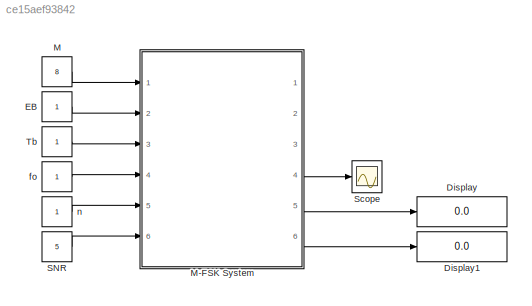
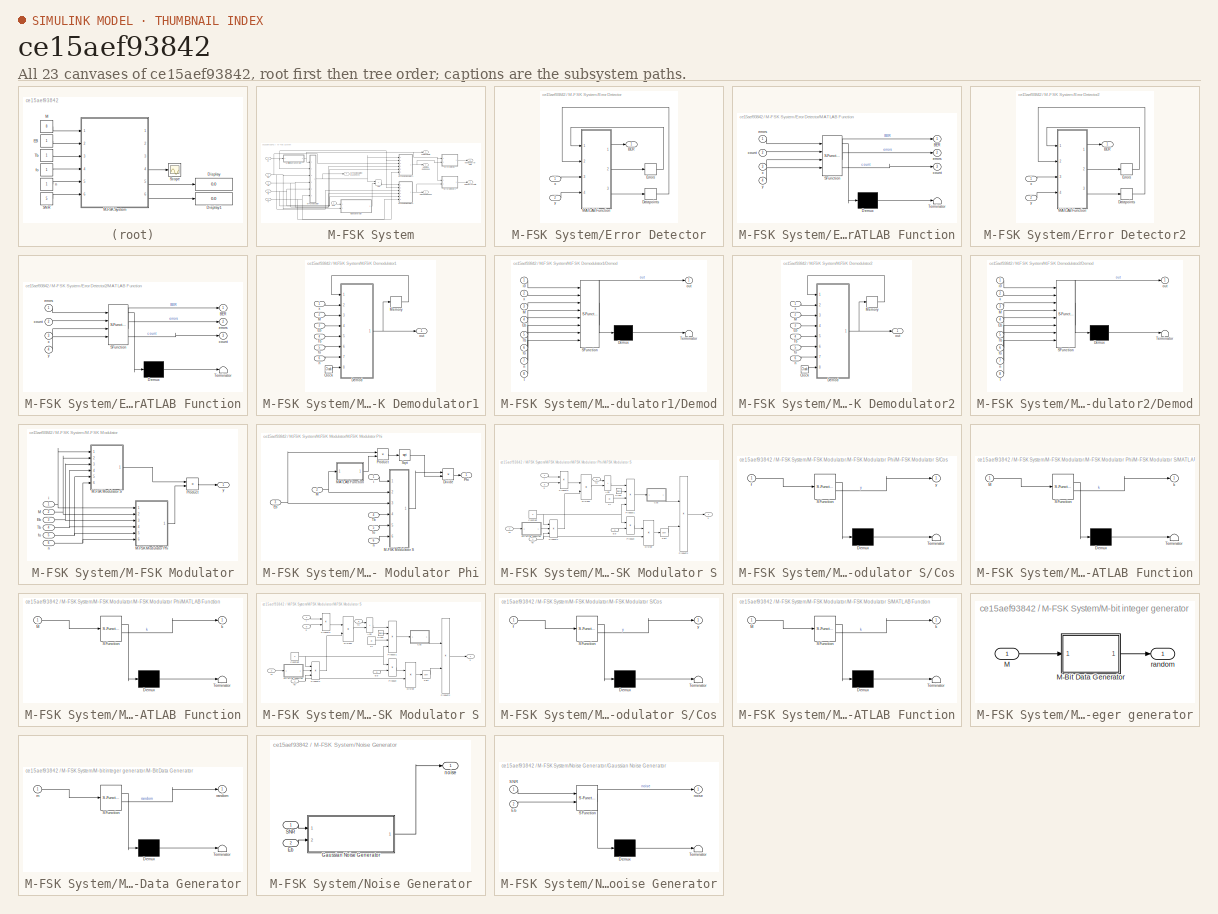
[diagram: thumbnail index - all 23 canvases of the model, root first then tree order]
MODEL slx_ce15aef93842
KIND model
CONFIG AbsTol = auto
CONFIG EnableMultiTasking = off
CONFIG FixedStep = auto
CONFIG MaxStep = auto
CONFIG MinStep = auto
CONFIG RelTol = 1e-3
CONFIG SampleTimeConstraint = Unconstrained
CONFIG SolverName = VariableStepAuto
CONFIG StartTime = 0.0
CONFIG StopTime = 20.0
WORKSPACE source: mxarray member
WORKSPACE Width = 1
WORKSPACE f = 1
BLOCK [Display] Display
  Decimation = 1
  Ports = [1]
BLOCK [Display] Display1
  Decimation = 1
  Ports = [1]
BLOCK [Constant] EB
BLOCK [Constant] M
  Value = 8
BLOCK [SubSystem] M-FSK System
  Ports = [6, 6]
  RequestExecContextInheritance = off
BLOCK [Sum] M-FSK System/Add
  IconShape = rectangular
  Ports = [2, 1]
BLOCK [Inport] M-FSK System/Eb
  Port = 2
BLOCK [SubSystem] M-FSK System/Error Detector
  Ports = [2, 1]
  RequestExecContextInheritance = off
BLOCK [Outport] M-FSK System/Error Detector/BER
BLOCK [Memory] M-FSK System/Error Detector/Datapoints
  InheritSampleTime = on
BLOCK [Memory] M-FSK System/Error Detector/Errors
  InheritSampleTime = on
BLOCK [SubSystem] M-FSK System/Error Detector/MATLAB Function
  ErrorFcn = Stateflow.Translate.translate
  PermitHierarchicalResolution = ExplicitOnly
  Ports = [4, 3]
  RequestExecContextInheritance = off
  SFBlockType = MATLAB Function
  SystemSampleTime = 0.01
  TreatAsAtomicUnit = on
BLOCK [Demux] M-FSK System/Error Detector/MATLAB Function/ Demux 
  Outputs = 1
  Ports = [1, 1]
BLOCK [S-Function] M-FSK System/Error Detector/MATLAB Function/ SFunction 
  EnableBusSupport = on
  FunctionName = sf_sfun
  PortCounts = [4 4]
  Ports = [4, 4]
  SFcnIsStateOwnerBlock = off
  SFunctionDeploymentMode = off
  Tag = Stateflow S-Function 10
BLOCK [Terminator] M-FSK System/Error Detector/MATLAB Function/ Terminator 
BLOCK [Outport] M-FSK System/Error Detector/MATLAB Function/BER
BLOCK [Outport] M-FSK System/Error Detector/MATLAB Function/count
  Port = 3
BLOCK [Inport] M-FSK System/Error Detector/MATLAB Function/count 
  Port = 2
BLOCK [Outport] M-FSK System/Error Detector/MATLAB Function/errors
  Port = 2
BLOCK [Inport] M-FSK System/Error Detector/MATLAB Function/errors 
BLOCK [Inport] M-FSK System/Error Detector/MATLAB Function/x
  Port = 3
BLOCK [Inport] M-FSK System/Error Detector/MATLAB Function/y
  Port = 4
BLOCK [Inport] M-FSK System/Error Detector/x
BLOCK [Inport] M-FSK System/Error Detector/y
  Port = 2
BLOCK [SubSystem] M-FSK System/Error Detector2
  Ports = [2, 1]
  RequestExecContextInheritance = off
BLOCK [Outport] M-FSK System/Error Detector2/BER
BLOCK [Memory] M-FSK System/Error Detector2/Datapoints
  InheritSampleTime = on
BLOCK [Memory] M-FSK System/Error Detector2/Errors
  InheritSampleTime = on
BLOCK [SubSystem] M-FSK System/Error Detector2/MATLAB Function
  ErrorFcn = Stateflow.Translate.translate
  PermitHierarchicalResolution = ExplicitOnly
  Ports = [4, 3]
  RequestExecContextInheritance = off
  SFBlockType = MATLAB Function
  SystemSampleTime = 0.01
  TreatAsAtomicUnit = on
BLOCK [Demux] M-FSK System/Error Detector2/MATLAB Function/ Demux 
  Outputs = 1
  Ports = [1, 1]
BLOCK [S-Function] M-FSK System/Error Detector2/MATLAB Function/ SFunction 
  EnableBusSupport = on
  FunctionName = sf_sfun
  PortCounts = [4 4]
  Ports = [4, 4]
  SFcnIsStateOwnerBlock = off
  SFunctionDeploymentMode = off
  Tag = Stateflow S-Function 11
BLOCK [Terminator] M-FSK System/Error Detector2/MATLAB Function/ Terminator 
BLOCK [Outport] M-FSK System/Error Detector2/MATLAB Function/BER
BLOCK [Outport] M-FSK System/Error Detector2/MATLAB Function/count
  Port = 3
BLOCK [Inport] M-FSK System/Error Detector2/MATLAB Function/count 
  Port = 2
BLOCK [Outport] M-FSK System/Error Detector2/MATLAB Function/errors
  Port = 2
BLOCK [Inport] M-FSK System/Error Detector2/MATLAB Function/errors 
BLOCK [Inport] M-FSK System/Error Detector2/MATLAB Function/x
  Port = 3
BLOCK [Inport] M-FSK System/Error Detector2/MATLAB Function/y
  Port = 4
BLOCK [Inport] M-FSK System/Error Detector2/x
BLOCK [Inport] M-FSK System/Error Detector2/y
  Port = 2
BLOCK [Inport] M-FSK System/M
BLOCK [SubSystem] M-FSK System/M-FSK Demodulator1
  Ports = [6, 1]
  RequestExecContextInheritance = off
BLOCK [Clock] M-FSK System/M-FSK Demodulator1/Clock
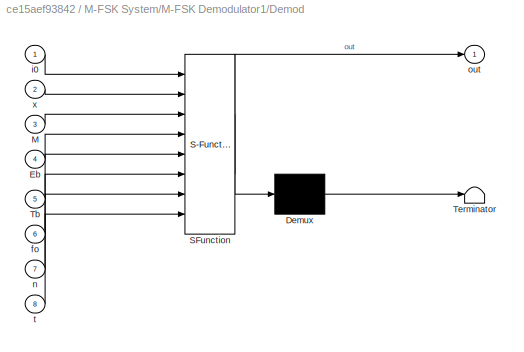
BLOCK [SubSystem] M-FSK System/M-FSK Demodulator1/Demod
  ErrorFcn = Stateflow.Translate.translate
  PermitHierarchicalResolution = ExplicitOnly
  Ports = [8, 1]
  RequestExecContextInheritance = off
  SFBlockType = MATLAB Function
  SystemSampleTime = 0.01
  TreatAsAtomicUnit = on
BLOCK [Demux] M-FSK System/M-FSK Demodulator1/Demod/ Demux 
  Outputs = 1
  Ports = [1, 1]
BLOCK [S-Function] M-FSK System/M-FSK Demodulator1/Demod/ SFunction 
  EnableBusSupport = on
  FunctionName = sf_sfun
  PortCounts = [8 2]
  Ports = [8, 2]
  SFcnIsStateOwnerBlock = off
  SFunctionDeploymentMode = off
  Tag = Stateflow S-Function 9
BLOCK [Terminator] M-FSK System/M-FSK Demodulator1/Demod/ Terminator 
BLOCK [Inport] M-FSK System/M-FSK Demodulator1/Demod/Eb
  Port = 4
BLOCK [Inport] M-FSK System/M-FSK Demodulator1/Demod/M
  Port = 3
BLOCK [Inport] M-FSK System/M-FSK Demodulator1/Demod/Tb
  Port = 5
BLOCK [Inport] M-FSK System/M-FSK Demodulator1/Demod/fo
  Port = 6
BLOCK [Inport] M-FSK System/M-FSK Demodulator1/Demod/i0
BLOCK [Inport] M-FSK System/M-FSK Demodulator1/Demod/n
  Port = 7
BLOCK [Outport] M-FSK System/M-FSK Demodulator1/Demod/out
BLOCK [Inport] M-FSK System/M-FSK Demodulator1/Demod/t
  Port = 8
BLOCK [Inport] M-FSK System/M-FSK Demodulator1/Demod/x
  Port = 2
BLOCK [Inport] M-FSK System/M-FSK Demodulator1/Eb
  Port = 3
BLOCK [Inport] M-FSK System/M-FSK Demodulator1/M
  Port = 2
BLOCK [Memory] M-FSK System/M-FSK Demodulator1/Memory
  InheritSampleTime = on
BLOCK [Inport] M-FSK System/M-FSK Demodulator1/Tb
  Port = 4
BLOCK [Inport] M-FSK System/M-FSK Demodulator1/fo
  Port = 5
BLOCK [Inport] M-FSK System/M-FSK Demodulator1/n
  Port = 6
BLOCK [Outport] M-FSK System/M-FSK Demodulator1/out
BLOCK [Inport] M-FSK System/M-FSK Demodulator1/x
BLOCK [SubSystem] M-FSK System/M-FSK Demodulator2
  Ports = [6, 1]
  RequestExecContextInheritance = off
BLOCK [Clock] M-FSK System/M-FSK Demodulator2/Clock
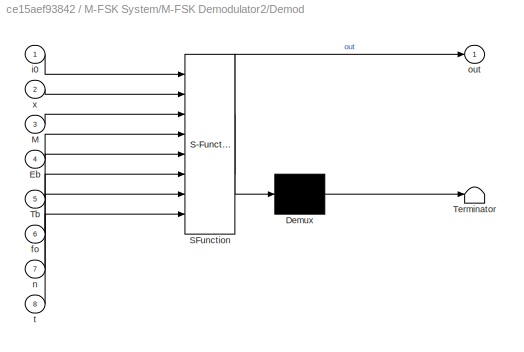
BLOCK [SubSystem] M-FSK System/M-FSK Demodulator2/Demod
  ErrorFcn = Stateflow.Translate.translate
  PermitHierarchicalResolution = ExplicitOnly
  Ports = [8, 1]
  RequestExecContextInheritance = off
  SFBlockType = MATLAB Function
  SystemSampleTime = 0.01
  TreatAsAtomicUnit = on
BLOCK [Demux] M-FSK System/M-FSK Demodulator2/Demod/ Demux 
  Outputs = 1
  Ports = [1, 1]
BLOCK [S-Function] M-FSK System/M-FSK Demodulator2/Demod/ SFunction 
  EnableBusSupport = on
  FunctionName = sf_sfun
  PortCounts = [8 2]
  Ports = [8, 2]
  SFcnIsStateOwnerBlock = off
  SFunctionDeploymentMode = off
  Tag = Stateflow S-Function 8
BLOCK [Terminator] M-FSK System/M-FSK Demodulator2/Demod/ Terminator 
BLOCK [Inport] M-FSK System/M-FSK Demodulator2/Demod/Eb
  Port = 4
BLOCK [Inport] M-FSK System/M-FSK Demodulator2/Demod/M
  Port = 3
BLOCK [Inport] M-FSK System/M-FSK Demodulator2/Demod/Tb
  Port = 5
BLOCK [Inport] M-FSK System/M-FSK Demodulator2/Demod/fo
  Port = 6
BLOCK [Inport] M-FSK System/M-FSK Demodulator2/Demod/i0
BLOCK [Inport] M-FSK System/M-FSK Demodulator2/Demod/n
  Port = 7
BLOCK [Outport] M-FSK System/M-FSK Demodulator2/Demod/out
BLOCK [Inport] M-FSK System/M-FSK Demodulator2/Demod/t
  Port = 8
BLOCK [Inport] M-FSK System/M-FSK Demodulator2/Demod/x
  Port = 2
BLOCK [Inport] M-FSK System/M-FSK Demodulator2/Eb
  Port = 3
BLOCK [Inport] M-FSK System/M-FSK Demodulator2/M
  Port = 2
BLOCK [Memory] M-FSK System/M-FSK Demodulator2/Memory
  InheritSampleTime = on
BLOCK [Inport] M-FSK System/M-FSK Demodulator2/Tb
  Port = 4
BLOCK [Inport] M-FSK System/M-FSK Demodulator2/fo
  Port = 5
BLOCK [Inport] M-FSK System/M-FSK Demodulator2/n
  Port = 6
BLOCK [Outport] M-FSK System/M-FSK Demodulator2/out
BLOCK [Inport] M-FSK System/M-FSK Demodulator2/x
BLOCK [Outport] M-FSK System/M-FSK Modulated WaveForm
  Port = 4
BLOCK [SubSystem] M-FSK System/M-FSK Modulator
  Ports = [6, 1]
  RequestExecContextInheritance = off
BLOCK [Inport] M-FSK System/M-FSK Modulator/Eb
  Port = 3
BLOCK [Inport] M-FSK System/M-FSK Modulator/M
  Port = 2
BLOCK [SubSystem] M-FSK System/M-FSK Modulator/M-FSK Modulator Phi
  Ports = [6, 1]
  RequestExecContextInheritance = off
BLOCK [Product] M-FSK System/M-FSK Modulator/M-FSK Modulator Phi/Divide
  Inputs = */
  Ports = [2, 1]
BLOCK [Inport] M-FSK System/M-FSK Modulator/M-FSK Modulator Phi/Eb
  Port = 3
BLOCK [Inport] M-FSK System/M-FSK Modulator/M-FSK Modulator Phi/M
  Port = 2
BLOCK [SubSystem] M-FSK System/M-FSK Modulator/M-FSK Modulator Phi/M-FSK Modulator S
  Ports = [6, 1]
  RequestExecContextInheritance = off
BLOCK [Sum] M-FSK System/M-FSK Modulator/M-FSK Modulator Phi/M-FSK Modulator S/Add
  IconShape = rectangular
  Ports = [2, 1]
BLOCK [Clock] M-FSK System/M-FSK Modulator/M-FSK Modulator Phi/M-FSK Modulator S/Clock
  Decimation = 1
BLOCK [Constant] M-FSK System/M-FSK Modulator/M-FSK Modulator Phi/M-FSK Modulator S/Constant
  Value = 2
BLOCK [SubSystem] M-FSK System/M-FSK Modulator/M-FSK Modulator Phi/M-FSK Modulator S/Cos
  ErrorFcn = Stateflow.Translate.translate
  PermitHierarchicalResolution = ExplicitOnly
  Ports = [1, 1]
  RequestExecContextInheritance = off
  SFBlockType = MATLAB Function
  SystemSampleTime = 0.01
  TreatAsAtomicUnit = on
BLOCK [Demux] M-FSK System/M-FSK Modulator/M-FSK Modulator Phi/M-FSK Modulator S/Cos/ Demux 
  Outputs = 1
  Ports = [1, 1]
BLOCK [S-Function] M-FSK System/M-FSK Modulator/M-FSK Modulator Phi/M-FSK Modulator S/Cos/ SFunction 
  EnableBusSupport = on
  FunctionName = sf_sfun
  PortCounts = [1 2]
  Ports = [1, 2]
  SFcnIsStateOwnerBlock = off
  SFunctionDeploymentMode = off
  Tag = Stateflow S-Function 2
BLOCK [Terminator] M-FSK System/M-FSK Modulator/M-FSK Modulator Phi/M-FSK Modulator S/Cos/ Terminator 
BLOCK [Inport] M-FSK System/M-FSK Modulator/M-FSK Modulator Phi/M-FSK Modulator S/Cos/f
BLOCK [Outport] M-FSK System/M-FSK Modulator/M-FSK Modulator Phi/M-FSK Modulator S/Cos/y
BLOCK [Product] M-FSK System/M-FSK Modulator/M-FSK Modulator Phi/M-FSK Modulator S/Divide
  Inputs = */
  Ports = [2, 1]
BLOCK [Product] M-FSK System/M-FSK Modulator/M-FSK Modulator Phi/M-FSK Modulator S/Divide1
  Inputs = */
  Ports = [2, 1]
BLOCK [Inport] M-FSK System/M-FSK Modulator/M-FSK Modulator Phi/M-FSK Modulator S/Eb
  Port = 3
BLOCK [Inport] M-FSK System/M-FSK Modulator/M-FSK Modulator Phi/M-FSK Modulator S/M
  Port = 2
BLOCK [SubSystem] M-FSK System/M-FSK Modulator/M-FSK Modulator Phi/M-FSK Modulator S/MATLAB Function
  ErrorFcn = Stateflow.Translate.translate
  PermitHierarchicalResolution = ExplicitOnly
  Ports = [1, 1]
  RequestExecContextInheritance = off
  SFBlockType = MATLAB Function
  TreatAsAtomicUnit = on
BLOCK [Demux] M-FSK System/M-FSK Modulator/M-FSK Modulator Phi/M-FSK Modulator S/MATLAB Function/ Demux 
  Outputs = 1
  Ports = [1, 1]
BLOCK [S-Function] M-FSK System/M-FSK Modulator/M-FSK Modulator Phi/M-FSK Modulator S/MATLAB Function/ SFunction 
  EnableBusSupport = on
  FunctionName = sf_sfun
  PortCounts = [1 2]
  Ports = [1, 2]
  SFcnIsStateOwnerBlock = off
  SFunctionDeploymentMode = off
  Tag = Stateflow S-Function 6
BLOCK [Terminator] M-FSK System/M-FSK Modulator/M-FSK Modulator Phi/M-FSK Modulator S/MATLAB Function/ Terminator 
BLOCK [Inport] M-FSK System/M-FSK Modulator/M-FSK Modulator Phi/M-FSK Modulator S/MATLAB Function/M
BLOCK [Outport] M-FSK System/M-FSK Modulator/M-FSK Modulator Phi/M-FSK Modulator S/MATLAB Function/k
BLOCK [Constant] M-FSK System/M-FSK Modulator/M-FSK Modulator Phi/M-FSK Modulator S/Pi
  OutDataTypeStr = Inherit: Inherit via back propagation
  Value = pi
BLOCK [Product] M-FSK System/M-FSK Modulator/M-FSK Modulator Phi/M-FSK Modulator S/Product
  Ports = [2, 1]
BLOCK [Product] M-FSK System/M-FSK Modulator/M-FSK Modulator Phi/M-FSK Modulator S/Product1
  Inputs = 4
  Ports = [4, 1]
BLOCK [Product] M-FSK System/M-FSK Modulator/M-FSK Modulator Phi/M-FSK Modulator S/Product2
  Ports = [2, 1]
BLOCK [Product] M-FSK System/M-FSK Modulator/M-FSK Modulator Phi/M-FSK Modulator S/Product3
  Ports = [2, 1]
BLOCK [Product] M-FSK System/M-FSK Modulator/M-FSK Modulator Phi/M-FSK Modulator S/Product4
  Inputs = 3
  Ports = [3, 1]
BLOCK [Sqrt] M-FSK System/M-FSK Modulator/M-FSK Modulator Phi/M-FSK Modulator S/Sqrt
BLOCK [Inport] M-FSK System/M-FSK Modulator/M-FSK Modulator Phi/M-FSK Modulator S/Tb
  Port = 4
BLOCK [Inport] M-FSK System/M-FSK Modulator/M-FSK Modulator Phi/M-FSK Modulator S/fo
  Port = 5
BLOCK [Inport] M-FSK System/M-FSK Modulator/M-FSK Modulator Phi/M-FSK Modulator S/i
BLOCK [Inport] M-FSK System/M-FSK Modulator/M-FSK Modulator Phi/M-FSK Modulator S/n
  Port = 6
BLOCK [Outport] M-FSK System/M-FSK Modulator/M-FSK Modulator Phi/M-FSK Modulator S/s
BLOCK [SubSystem] M-FSK System/M-FSK Modulator/M-FSK Modulator Phi/MATLAB Function
  ErrorFcn = Stateflow.Translate.translate
  PermitHierarchicalResolution = ExplicitOnly
  Ports = [1, 1]
  RequestExecContextInheritance = off
  SFBlockType = MATLAB Function
  TreatAsAtomicUnit = on
BLOCK [Demux] M-FSK System/M-FSK Modulator/M-FSK Modulator Phi/MATLAB Function/ Demux 
  Outputs = 1
  Ports = [1, 1]
BLOCK [S-Function] M-FSK System/M-FSK Modulator/M-FSK Modulator Phi/MATLAB Function/ SFunction 
  EnableBusSupport = on
  FunctionName = sf_sfun
  PortCounts = [1 2]
  Ports = [1, 2]
  SFcnIsStateOwnerBlock = off
  SFunctionDeploymentMode = off
  Tag = Stateflow S-Function 7
BLOCK [Terminator] M-FSK System/M-FSK Modulator/M-FSK Modulator Phi/MATLAB Function/ Terminator 
BLOCK [Inport] M-FSK System/M-FSK Modulator/M-FSK Modulator Phi/MATLAB Function/M
BLOCK [Outport] M-FSK System/M-FSK Modulator/M-FSK Modulator Phi/MATLAB Function/k
BLOCK [Outport] M-FSK System/M-FSK Modulator/M-FSK Modulator Phi/Phi
BLOCK [Product] M-FSK System/M-FSK Modulator/M-FSK Modulator Phi/Product
  Ports = [2, 1]
BLOCK [Sqrt] M-FSK System/M-FSK Modulator/M-FSK Modulator Phi/Sqrt
BLOCK [Inport] M-FSK System/M-FSK Modulator/M-FSK Modulator Phi/Tb
  Port = 4
BLOCK [Inport] M-FSK System/M-FSK Modulator/M-FSK Modulator Phi/fo
  Port = 5
BLOCK [Inport] M-FSK System/M-FSK Modulator/M-FSK Modulator Phi/i
BLOCK [Inport] M-FSK System/M-FSK Modulator/M-FSK Modulator Phi/n
  Port = 6
BLOCK [SubSystem] M-FSK System/M-FSK Modulator/M-FSK Modulator S
  Ports = [6, 1]
  RequestExecContextInheritance = off
BLOCK [Sum] M-FSK System/M-FSK Modulator/M-FSK Modulator S/Add
  IconShape = rectangular
  Ports = [2, 1]
BLOCK [Clock] M-FSK System/M-FSK Modulator/M-FSK Modulator S/Clock
  Decimation = 1
BLOCK [Constant] M-FSK System/M-FSK Modulator/M-FSK Modulator S/Constant
  Value = 2
BLOCK [SubSystem] M-FSK System/M-FSK Modulator/M-FSK Modulator S/Cos
  ErrorFcn = Stateflow.Translate.translate
  PermitHierarchicalResolution = ExplicitOnly
  Ports = [1, 1]
  RequestExecContextInheritance = off
  SFBlockType = MATLAB Function
  SystemSampleTime = 0.01
  TreatAsAtomicUnit = on
BLOCK [Demux] M-FSK System/M-FSK Modulator/M-FSK Modulator S/Cos/ Demux 
  Outputs = 1
  Ports = [1, 1]
BLOCK [S-Function] M-FSK System/M-FSK Modulator/M-FSK Modulator S/Cos/ SFunction 
  EnableBusSupport = on
  FunctionName = sf_sfun
  PortCounts = [1 2]
  Ports = [1, 2]
  SFcnIsStateOwnerBlock = off
  SFunctionDeploymentMode = off
  Tag = Stateflow S-Function 1
BLOCK [Terminator] M-FSK System/M-FSK Modulator/M-FSK Modulator S/Cos/ Terminator 
BLOCK [Inport] M-FSK System/M-FSK Modulator/M-FSK Modulator S/Cos/f
BLOCK [Outport] M-FSK System/M-FSK Modulator/M-FSK Modulator S/Cos/y
BLOCK [Product] M-FSK System/M-FSK Modulator/M-FSK Modulator S/Divide
  Inputs = */
  Ports = [2, 1]
BLOCK [Product] M-FSK System/M-FSK Modulator/M-FSK Modulator S/Divide1
  Inputs = */
  Ports = [2, 1]
BLOCK [Inport] M-FSK System/M-FSK Modulator/M-FSK Modulator S/Eb
  Port = 3
BLOCK [Inport] M-FSK System/M-FSK Modulator/M-FSK Modulator S/M
  Port = 2
BLOCK [SubSystem] M-FSK System/M-FSK Modulator/M-FSK Modulator S/MATLAB Function
  ErrorFcn = Stateflow.Translate.translate
  PermitHierarchicalResolution = ExplicitOnly
  Ports = [1, 1]
  RequestExecContextInheritance = off
  SFBlockType = MATLAB Function
  TreatAsAtomicUnit = on
BLOCK [Demux] M-FSK System/M-FSK Modulator/M-FSK Modulator S/MATLAB Function/ Demux 
  Outputs = 1
  Ports = [1, 1]
BLOCK [S-Function] M-FSK System/M-FSK Modulator/M-FSK Modulator S/MATLAB Function/ SFunction 
  EnableBusSupport = on
  FunctionName = sf_sfun
  PortCounts = [1 2]
  Ports = [1, 2]
  SFcnIsStateOwnerBlock = off
  SFunctionDeploymentMode = off
  Tag = Stateflow S-Function 5
BLOCK [Terminator] M-FSK System/M-FSK Modulator/M-FSK Modulator S/MATLAB Function/ Terminator 
BLOCK [Inport] M-FSK System/M-FSK Modulator/M-FSK Modulator S/MATLAB Function/M
BLOCK [Outport] M-FSK System/M-FSK Modulator/M-FSK Modulator S/MATLAB Function/k
BLOCK [Constant] M-FSK System/M-FSK Modulator/M-FSK Modulator S/Pi
  OutDataTypeStr = Inherit: Inherit via back propagation
  Value = pi
BLOCK [Product] M-FSK System/M-FSK Modulator/M-FSK Modulator S/Product
  Ports = [2, 1]
BLOCK [Product] M-FSK System/M-FSK Modulator/M-FSK Modulator S/Product1
  Inputs = 4
  Ports = [4, 1]
BLOCK [Product] M-FSK System/M-FSK Modulator/M-FSK Modulator S/Product2
  Ports = [2, 1]
BLOCK [Product] M-FSK System/M-FSK Modulator/M-FSK Modulator S/Product3
  Ports = [2, 1]
BLOCK [Product] M-FSK System/M-FSK Modulator/M-FSK Modulator S/Product4
  Inputs = 3
  Ports = [3, 1]
BLOCK [Sqrt] M-FSK System/M-FSK Modulator/M-FSK Modulator S/Sqrt
BLOCK [Inport] M-FSK System/M-FSK Modulator/M-FSK Modulator S/Tb
  Port = 4
BLOCK [Inport] M-FSK System/M-FSK Modulator/M-FSK Modulator S/fo
  Port = 5
BLOCK [Inport] M-FSK System/M-FSK Modulator/M-FSK Modulator S/i
BLOCK [Inport] M-FSK System/M-FSK Modulator/M-FSK Modulator S/n
  Port = 6
BLOCK [Outport] M-FSK System/M-FSK Modulator/M-FSK Modulator S/s
BLOCK [Product] M-FSK System/M-FSK Modulator/Product
  Ports = [2, 1]
BLOCK [Inport] M-FSK System/M-FSK Modulator/Tb
  Port = 4
BLOCK [Inport] M-FSK System/M-FSK Modulator/fo
  Port = 5
BLOCK [Inport] M-FSK System/M-FSK Modulator/i
BLOCK [Inport] M-FSK System/M-FSK Modulator/n
  Port = 6
BLOCK [Outport] M-FSK System/M-FSK Modulator/y
BLOCK [SubSystem] M-FSK System/M-bit integer generator
  Ports = [1, 1]
  RequestExecContextInheritance = off
BLOCK [Inport] M-FSK System/M-bit integer generator/M
BLOCK [SubSystem] M-FSK System/M-bit integer generator/M-Bit Data Generator
  ErrorFcn = Stateflow.Translate.translate
  PermitHierarchicalResolution = ExplicitOnly
  Ports = [1, 1]
  RequestExecContextInheritance = off
  SFBlockType = MATLAB Function
  SystemSampleTime = 2
  TreatAsAtomicUnit = on
BLOCK [Demux] M-FSK System/M-bit integer generator/M-Bit Data Generator/ Demux 
  Outputs = 1
  Ports = [1, 1]
BLOCK [S-Function] M-FSK System/M-bit integer generator/M-Bit Data Generator/ SFunction 
  EnableBusSupport = on
  FunctionName = sf_sfun
  PortCounts = [1 2]
  Ports = [1, 2]
  SFcnIsStateOwnerBlock = off
  SFunctionDeploymentMode = off
  Tag = Stateflow S-Function 4
BLOCK [Terminator] M-FSK System/M-bit integer generator/M-Bit Data Generator/ Terminator 
BLOCK [Inport] M-FSK System/M-bit integer generator/M-Bit Data Generator/m
BLOCK [Outport] M-FSK System/M-bit integer generator/M-Bit Data Generator/random
BLOCK [Outport] M-FSK System/M-bit integer generator/random
BLOCK [Outport] M-FSK System/No Noise Demodded
BLOCK [Outport] M-FSK System/No Noise Error Rate
  Port = 5
BLOCK [Outport] M-FSK System/Noise Demodded
  Port = 2
BLOCK [Outport] M-FSK System/Noise Error Rate
  Port = 6
BLOCK [SubSystem] M-FSK System/Noise Generator
  Ports = [2, 1]
  RequestExecContextInheritance = off
BLOCK [Inport] M-FSK System/Noise Generator/Eb
  Port = 2
BLOCK [SubSystem] M-FSK System/Noise Generator/Gaussian Noise Generator
  ErrorFcn = Stateflow.Translate.translate
  PermitHierarchicalResolution = ExplicitOnly
  Ports = [2, 1]
  RequestExecContextInheritance = off
  SFBlockType = MATLAB Function
  SystemSampleTime = 0.01
  TreatAsAtomicUnit = on
BLOCK [Demux] M-FSK System/Noise Generator/Gaussian Noise Generator/ Demux 
  Outputs = 1
  Ports = [1, 1]
BLOCK [S-Function] M-FSK System/Noise Generator/Gaussian Noise Generator/ SFunction 
  EnableBusSupport = on
  FunctionName = sf_sfun
  PortCounts = [2 2]
  Ports = [2, 2]
  SFcnIsStateOwnerBlock = off
  SFunctionDeploymentMode = off
  Tag = Stateflow S-Function 3
BLOCK [Terminator] M-FSK System/Noise Generator/Gaussian Noise Generator/ Terminator 
BLOCK [Inport] M-FSK System/Noise Generator/Gaussian Noise Generator/Eb
  Port = 2
BLOCK [Inport] M-FSK System/Noise Generator/Gaussian Noise Generator/SNR
BLOCK [Outport] M-FSK System/Noise Generator/Gaussian Noise Generator/noise
BLOCK [Inport] M-FSK System/Noise Generator/SNR
BLOCK [Outport] M-FSK System/Noise Generator/noise
BLOCK [Outport] M-FSK System/Origional Data
  Port = 3
BLOCK [Inport] M-FSK System/SNR
  Port = 6
BLOCK [Inport] M-FSK System/Tb
  Port = 3
BLOCK [Inport] M-FSK System/fo
  Port = 4
BLOCK [Inport] M-FSK System/n
  Port = 5
BLOCK [Constant] SNR
  Value = 5
BLOCK [Scope] Scope
  Floating = off
  NumInputPorts = 1
  Ports = [1]
  ScopeSpecificationString = Simulink.scopes.TimeScopeBlockCfg('CurrentConfiguration', extmgr.ConfigurationSet(extmgr.Configuration('Core','General UI',true),extmgr.Configuration('Core','Source UI',true),extmgr.Configuration('Sources','WiredSimulink',true),extmgr.Configuration('Visuals','Time Domain',true,'SerializedDisplays',{struct('MinYLimReal','-0.875','MaxYLimReal','7.875','YLabelReal','','MinYLimMag','0.00000','MaxYLimM...<+1353ch>
BLOCK [Constant] Tb
BLOCK [Constant] fo
BLOCK [Constant] n
LINE EB:1 -> M-FSK System:2
LINE M-FSK System/Add:1 -> M-FSK System/M-FSK Demodulator2:1
NET M-FSK System/Eb:1 -> M-FSK System/M-FSK Demodulator1:3, M-FSK System/M-FSK Demodulator2:3, M-FSK System/M-FSK Modulator:3, M-FSK System/Noise Generator:2
LINE M-FSK System/Error Detector/Datapoints:1 -> M-FSK System/Error Detector/MATLAB Function:2
LINE M-FSK System/Error Detector/Errors:1 -> M-FSK System/Error Detector/MATLAB Function:1
LINE M-FSK System/Error Detector/MATLAB Function:1 -> M-FSK System/Error Detector/BER:1
LINE M-FSK System/Error Detector/MATLAB Function:2 -> M-FSK System/Error Detector/Errors:1
LINE M-FSK System/Error Detector/MATLAB Function:3 -> M-FSK System/Error Detector/Datapoints:1
LINE M-FSK System/Error Detector/x:1 -> M-FSK System/Error Detector/MATLAB Function:3
LINE M-FSK System/Error Detector/y:1 -> M-FSK System/Error Detector/MATLAB Function:4
LINE M-FSK System/Error Detector2/Datapoints:1 -> M-FSK System/Error Detector2/MATLAB Function:2
LINE M-FSK System/Error Detector2/Errors:1 -> M-FSK System/Error Detector2/MATLAB Function:1
LINE M-FSK System/Error Detector2/MATLAB Function:1 -> M-FSK System/Error Detector2/BER:1
LINE M-FSK System/Error Detector2/MATLAB Function:2 -> M-FSK System/Error Detector2/Errors:1
LINE M-FSK System/Error Detector2/MATLAB Function:3 -> M-FSK System/Error Detector2/Datapoints:1
LINE M-FSK System/Error Detector2/x:1 -> M-FSK System/Error Detector2/MATLAB Function:3
LINE M-FSK System/Error Detector2/y:1 -> M-FSK System/Error Detector2/MATLAB Function:4
LINE M-FSK System/Error Detector2:1 -> M-FSK System/Noise Error Rate:1
LINE M-FSK System/Error Detector:1 -> M-FSK System/No Noise Error Rate:1
LINE M-FSK System/M-FSK Demodulator1/Clock:1 -> M-FSK System/M-FSK Demodulator1/Demod:8
NET M-FSK System/M-FSK Demodulator1/Demod:1 -> M-FSK System/M-FSK Demodulator1/Memory:1, M-FSK System/M-FSK Demodulator1/out:1
LINE M-FSK System/M-FSK Demodulator1/Eb:1 -> M-FSK System/M-FSK Demodulator1/Demod:4
LINE M-FSK System/M-FSK Demodulator1/M:1 -> M-FSK System/M-FSK Demodulator1/Demod:3
LINE M-FSK System/M-FSK Demodulator1/Memory:1 -> M-FSK System/M-FSK Demodulator1/Demod:1
LINE M-FSK System/M-FSK Demodulator1/Tb:1 -> M-FSK System/M-FSK Demodulator1/Demod:5
LINE M-FSK System/M-FSK Demodulator1/fo:1 -> M-FSK System/M-FSK Demodulator1/Demod:6
LINE M-FSK System/M-FSK Demodulator1/n:1 -> M-FSK System/M-FSK Demodulator1/Demod:7
LINE M-FSK System/M-FSK Demodulator1/x:1 -> M-FSK System/M-FSK Demodulator1/Demod:2
NET M-FSK System/M-FSK Demodulator1:1 -> M-FSK System/Error Detector:2, M-FSK System/No Noise Demodded:1
LINE M-FSK System/M-FSK Demodulator2/Clock:1 -> M-FSK System/M-FSK Demodulator2/Demod:8
NET M-FSK System/M-FSK Demodulator2/Demod:1 -> M-FSK System/M-FSK Demodulator2/Memory:1, M-FSK System/M-FSK Demodulator2/out:1
LINE M-FSK System/M-FSK Demodulator2/Eb:1 -> M-FSK System/M-FSK Demodulator2/Demod:4
LINE M-FSK System/M-FSK Demodulator2/M:1 -> M-FSK System/M-FSK Demodulator2/Demod:3
LINE M-FSK System/M-FSK Demodulator2/Memory:1 -> M-FSK System/M-FSK Demodulator2/Demod:1
LINE M-FSK System/M-FSK Demodulator2/Tb:1 -> M-FSK System/M-FSK Demodulator2/Demod:5
LINE M-FSK System/M-FSK Demodulator2/fo:1 -> M-FSK System/M-FSK Demodulator2/Demod:6
LINE M-FSK System/M-FSK Demodulator2/n:1 -> M-FSK System/M-FSK Demodulator2/Demod:7
LINE M-FSK System/M-FSK Demodulator2/x:1 -> M-FSK System/M-FSK Demodulator2/Demod:2
NET M-FSK System/M-FSK Demodulator2:1 -> M-FSK System/Error Detector2:2, M-FSK System/Noise Demodded:1
NET M-FSK System/M-FSK Modulator/Eb:1 -> M-FSK System/M-FSK Modulator/M-FSK Modulator Phi:3, M-FSK System/M-FSK Modulator/M-FSK Modulator S:3
LINE M-FSK System/M-FSK Modulator/M-FSK Modulator Phi/Divide:1 -> M-FSK System/M-FSK Modulator/M-FSK Modulator Phi/Phi:1
NET M-FSK System/M-FSK Modulator/M-FSK Modulator Phi/Eb:1 -> M-FSK System/M-FSK Modulator/M-FSK Modulator Phi/M-FSK Modulator S:3, M-FSK System/M-FSK Modulator/M-FSK Modulator Phi/Product:1
LINE M-FSK System/M-FSK Modulator/M-FSK Modulator Phi/M-FSK Modulator S/Add:1 -> M-FSK System/M-FSK Modulator/M-FSK Modulator Phi/M-FSK Modulator S/Product1:1
LINE M-FSK System/M-FSK Modulator/M-FSK Modulator Phi/M-FSK Modulator S/Clock:1 -> M-FSK System/M-FSK Modulator/M-FSK Modulator Phi/M-FSK Modulator S/Product1:2
NET M-FSK System/M-FSK Modulator/M-FSK Modulator Phi/M-FSK Modulator S/Constant:1 -> M-FSK System/M-FSK Modulator/M-FSK Modulator Phi/M-FSK Modulator S/Product1:4, M-FSK System/M-FSK Modulator/M-FSK Modulator Phi/M-FSK Modulator S/Product4:1, M-FSK System/M-FSK Modulator/M-FSK Modulator Phi/M-FSK Modulator S/Product:1
LINE M-FSK System/M-FSK Modulator/M-FSK Modulator Phi/M-FSK Modulator S/Cos:1 -> M-FSK System/M-FSK Modulator/M-FSK Modulator Phi/M-FSK Modulator S/Product2:1
LINE M-FSK System/M-FSK Modulator/M-FSK Modulator Phi/M-FSK Modulator S/Divide1:1 -> M-FSK System/M-FSK Modulator/M-FSK Modulator Phi/M-FSK Modulator S/Add:2
LINE M-FSK System/M-FSK Modulator/M-FSK Modulator Phi/M-FSK Modulator S/Divide:1 -> M-FSK System/M-FSK Modulator/M-FSK Modulator Phi/M-FSK Modulator S/Sqrt:1
LINE M-FSK System/M-FSK Modulator/M-FSK Modulator Phi/M-FSK Modulator S/Eb:1 -> M-FSK System/M-FSK Modulator/M-FSK Modulator Phi/M-FSK Modulator S/Product:2
LINE M-FSK System/M-FSK Modulator/M-FSK Modulator Phi/M-FSK Modulator S/M:1 -> M-FSK System/M-FSK Modulator/M-FSK Modulator Phi/M-FSK Modulator S/MATLAB Function:1
LINE M-FSK System/M-FSK Modulator/M-FSK Modulator Phi/M-FSK Modulator S/MATLAB Function:1 -> M-FSK System/M-FSK Modulator/M-FSK Modulator Phi/M-FSK Modulator S/Product4:2
LINE M-FSK System/M-FSK Modulator/M-FSK Modulator Phi/M-FSK Modulator S/Pi:1 -> M-FSK System/M-FSK Modulator/M-FSK Modulator Phi/M-FSK Modulator S/Product1:3
LINE M-FSK System/M-FSK Modulator/M-FSK Modulator Phi/M-FSK Modulator S/Product1:1 -> M-FSK System/M-FSK Modulator/M-FSK Modulator Phi/M-FSK Modulator S/Cos:1
LINE M-FSK System/M-FSK Modulator/M-FSK Modulator Phi/M-FSK Modulator S/Product2:1 -> M-FSK System/M-FSK Modulator/M-FSK Modulator Phi/M-FSK Modulator S/s:1
LINE M-FSK System/M-FSK Modulator/M-FSK Modulator Phi/M-FSK Modulator S/Product3:1 -> M-FSK System/M-FSK Modulator/M-FSK Modulator Phi/M-FSK Modulator S/Divide1:1
LINE M-FSK System/M-FSK Modulator/M-FSK Modulator Phi/M-FSK Modulator S/Product4:1 -> M-FSK System/M-FSK Modulator/M-FSK Modulator Phi/M-FSK Modulator S/Divide1:2
LINE M-FSK System/M-FSK Modulator/M-FSK Modulator Phi/M-FSK Modulator S/Product:1 -> M-FSK System/M-FSK Modulator/M-FSK Modulator Phi/M-FSK Modulator S/Divide:1
LINE M-FSK System/M-FSK Modulator/M-FSK Modulator Phi/M-FSK Modulator S/Sqrt:1 -> M-FSK System/M-FSK Modulator/M-FSK Modulator Phi/M-FSK Modulator S/Product2:2
NET M-FSK System/M-FSK Modulator/M-FSK Modulator Phi/M-FSK Modulator S/Tb:1 -> M-FSK System/M-FSK Modulator/M-FSK Modulator Phi/M-FSK Modulator S/Divide:2, M-FSK System/M-FSK Modulator/M-FSK Modulator Phi/M-FSK Modulator S/Product4:3
LINE M-FSK System/M-FSK Modulator/M-FSK Modulator Phi/M-FSK Modulator S/fo:1 -> M-FSK System/M-FSK Modulator/M-FSK Modulator Phi/M-FSK Modulator S/Add:1
LINE M-FSK System/M-FSK Modulator/M-FSK Modulator Phi/M-FSK Modulator S/i:1 -> M-FSK System/M-FSK Modulator/M-FSK Modulator Phi/M-FSK Modulator S/Product3:1
LINE M-FSK System/M-FSK Modulator/M-FSK Modulator Phi/M-FSK Modulator S/n:1 -> M-FSK System/M-FSK Modulator/M-FSK Modulator Phi/M-FSK Modulator S/Product3:2
LINE M-FSK System/M-FSK Modulator/M-FSK Modulator Phi/M-FSK Modulator S:1 -> M-FSK System/M-FSK Modulator/M-FSK Modulator Phi/Divide:1
NET M-FSK System/M-FSK Modulator/M-FSK Modulator Phi/M:1 -> M-FSK System/M-FSK Modulator/M-FSK Modulator Phi/M-FSK Modulator S:2, M-FSK System/M-FSK Modulator/M-FSK Modulator Phi/MATLAB Function:1
LINE M-FSK System/M-FSK Modulator/M-FSK Modulator Phi/MATLAB Function:1 -> M-FSK System/M-FSK Modulator/M-FSK Modulator Phi/Product:2
LINE M-FSK System/M-FSK Modulator/M-FSK Modulator Phi/Product:1 -> M-FSK System/M-FSK Modulator/M-FSK Modulator Phi/Sqrt:1
LINE M-FSK System/M-FSK Modulator/M-FSK Modulator Phi/Sqrt:1 -> M-FSK System/M-FSK Modulator/M-FSK Modulator Phi/Divide:2
LINE M-FSK System/M-FSK Modulator/M-FSK Modulator Phi/Tb:1 -> M-FSK System/M-FSK Modulator/M-FSK Modulator Phi/M-FSK Modulator S:4
LINE M-FSK System/M-FSK Modulator/M-FSK Modulator Phi/fo:1 -> M-FSK System/M-FSK Modulator/M-FSK Modulator Phi/M-FSK Modulator S:5
LINE M-FSK System/M-FSK Modulator/M-FSK Modulator Phi/i:1 -> M-FSK System/M-FSK Modulator/M-FSK Modulator Phi/M-FSK Modulator S:1
LINE M-FSK System/M-FSK Modulator/M-FSK Modulator Phi/n:1 -> M-FSK System/M-FSK Modulator/M-FSK Modulator Phi/M-FSK Modulator S:6
LINE M-FSK System/M-FSK Modulator/M-FSK Modulator Phi:1 -> M-FSK System/M-FSK Modulator/Product:2
LINE M-FSK System/M-FSK Modulator/M-FSK Modulator S/Add:1 -> M-FSK System/M-FSK Modulator/M-FSK Modulator S/Product1:1
LINE M-FSK System/M-FSK Modulator/M-FSK Modulator S/Clock:1 -> M-FSK System/M-FSK Modulator/M-FSK Modulator S/Product1:2
NET M-FSK System/M-FSK Modulator/M-FSK Modulator S/Constant:1 -> M-FSK System/M-FSK Modulator/M-FSK Modulator S/Product1:4, M-FSK System/M-FSK Modulator/M-FSK Modulator S/Product4:1, M-FSK System/M-FSK Modulator/M-FSK Modulator S/Product:1
LINE M-FSK System/M-FSK Modulator/M-FSK Modulator S/Cos:1 -> M-FSK System/M-FSK Modulator/M-FSK Modulator S/Product2:1
LINE M-FSK System/M-FSK Modulator/M-FSK Modulator S/Divide1:1 -> M-FSK System/M-FSK Modulator/M-FSK Modulator S/Add:2
LINE M-FSK System/M-FSK Modulator/M-FSK Modulator S/Divide:1 -> M-FSK System/M-FSK Modulator/M-FSK Modulator S/Sqrt:1
LINE M-FSK System/M-FSK Modulator/M-FSK Modulator S/Eb:1 -> M-FSK System/M-FSK Modulator/M-FSK Modulator S/Product:2
LINE M-FSK System/M-FSK Modulator/M-FSK Modulator S/M:1 -> M-FSK System/M-FSK Modulator/M-FSK Modulator S/MATLAB Function:1
LINE M-FSK System/M-FSK Modulator/M-FSK Modulator S/MATLAB Function:1 -> M-FSK System/M-FSK Modulator/M-FSK Modulator S/Product4:2
LINE M-FSK System/M-FSK Modulator/M-FSK Modulator S/Pi:1 -> M-FSK System/M-FSK Modulator/M-FSK Modulator S/Product1:3
LINE M-FSK System/M-FSK Modulator/M-FSK Modulator S/Product1:1 -> M-FSK System/M-FSK Modulator/M-FSK Modulator S/Cos:1
LINE M-FSK System/M-FSK Modulator/M-FSK Modulator S/Product2:1 -> M-FSK System/M-FSK Modulator/M-FSK Modulator S/s:1
LINE M-FSK System/M-FSK Modulator/M-FSK Modulator S/Product3:1 -> M-FSK System/M-FSK Modulator/M-FSK Modulator S/Divide1:1
LINE M-FSK System/M-FSK Modulator/M-FSK Modulator S/Product4:1 -> M-FSK System/M-FSK Modulator/M-FSK Modulator S/Divide1:2
LINE M-FSK System/M-FSK Modulator/M-FSK Modulator S/Product:1 -> M-FSK System/M-FSK Modulator/M-FSK Modulator S/Divide:1
LINE M-FSK System/M-FSK Modulator/M-FSK Modulator S/Sqrt:1 -> M-FSK System/M-FSK Modulator/M-FSK Modulator S/Product2:2
NET M-FSK System/M-FSK Modulator/M-FSK Modulator S/Tb:1 -> M-FSK System/M-FSK Modulator/M-FSK Modulator S/Divide:2, M-FSK System/M-FSK Modulator/M-FSK Modulator S/Product4:3
LINE M-FSK System/M-FSK Modulator/M-FSK Modulator S/fo:1 -> M-FSK System/M-FSK Modulator/M-FSK Modulator S/Add:1
LINE M-FSK System/M-FSK Modulator/M-FSK Modulator S/i:1 -> M-FSK System/M-FSK Modulator/M-FSK Modulator S/Product3:1
LINE M-FSK System/M-FSK Modulator/M-FSK Modulator S/n:1 -> M-FSK System/M-FSK Modulator/M-FSK Modulator S/Product3:2
LINE M-FSK System/M-FSK Modulator/M-FSK Modulator S:1 -> M-FSK System/M-FSK Modulator/Product:1
NET M-FSK System/M-FSK Modulator/M:1 -> M-FSK System/M-FSK Modulator/M-FSK Modulator Phi:2, M-FSK System/M-FSK Modulator/M-FSK Modulator S:2
LINE M-FSK System/M-FSK Modulator/Product:1 -> M-FSK System/M-FSK Modulator/y:1
NET M-FSK System/M-FSK Modulator/Tb:1 -> M-FSK System/M-FSK Modulator/M-FSK Modulator Phi:4, M-FSK System/M-FSK Modulator/M-FSK Modulator S:4
NET M-FSK System/M-FSK Modulator/fo:1 -> M-FSK System/M-FSK Modulator/M-FSK Modulator Phi:5, M-FSK System/M-FSK Modulator/M-FSK Modulator S:5
NET M-FSK System/M-FSK Modulator/i:1 -> M-FSK System/M-FSK Modulator/M-FSK Modulator Phi:1, M-FSK System/M-FSK Modulator/M-FSK Modulator S:1
NET M-FSK System/M-FSK Modulator/n:1 -> M-FSK System/M-FSK Modulator/M-FSK Modulator Phi:6, M-FSK System/M-FSK Modulator/M-FSK Modulator S:6
NET M-FSK System/M-FSK Modulator:1 -> M-FSK System/Add:1, M-FSK System/M-FSK Demodulator1:1, M-FSK System/M-FSK Modulated WaveForm:1
LINE M-FSK System/M-bit integer generator/M-Bit Data Generator:1 -> M-FSK System/M-bit integer generator/random:1
LINE M-FSK System/M-bit integer generator/M:1 -> M-FSK System/M-bit integer generator/M-Bit Data Generator:1
NET M-FSK System/M-bit integer generator:1 -> M-FSK System/Error Detector2:1, M-FSK System/Error Detector:1, M-FSK System/M-FSK Modulator:1, M-FSK System/Origional Data:1
NET M-FSK System/M:1 -> M-FSK System/M-FSK Demodulator1:2, M-FSK System/M-FSK Demodulator2:2, M-FSK System/M-FSK Modulator:2, M-FSK System/M-bit integer generator:1
LINE M-FSK System/Noise Generator/Eb:1 -> M-FSK System/Noise Generator/Gaussian Noise Generator:2
LINE M-FSK System/Noise Generator/Gaussian Noise Generator:1 -> M-FSK System/Noise Generator/noise:1
LINE M-FSK System/Noise Generator/SNR:1 -> M-FSK System/Noise Generator/Gaussian Noise Generator:1
LINE M-FSK System/Noise Generator:1 -> M-FSK System/Add:2
LINE M-FSK System/SNR:1 -> M-FSK System/Noise Generator:1
NET M-FSK System/Tb:1 -> M-FSK System/M-FSK Demodulator1:4, M-FSK System/M-FSK Demodulator2:4, M-FSK System/M-FSK Modulator:4
NET M-FSK System/fo:1 -> M-FSK System/M-FSK Demodulator1:5, M-FSK System/M-FSK Demodulator2:5, M-FSK System/M-FSK Modulator:5
NET M-FSK System/n:1 -> M-FSK System/M-FSK Demodulator1:6, M-FSK System/M-FSK Demodulator2:6, M-FSK System/M-FSK Modulator:6
LINE M-FSK System:4 -> Scope:1
LINE M-FSK System:5 -> Display:1
LINE M-FSK System:6 -> Display1:1
LINE M:1 -> M-FSK System:1
LINE SNR:1 -> M-FSK System:6
LINE Tb:1 -> M-FSK System:3
LINE fo:1 -> M-FSK System:4
LINE n:1 -> M-FSK System:5
note: NET lines group one-source signal fan-out (src -> all destinations, sorted); 1:1 wires keep LINE
CHART M-FSK System/Error Detector2/MATLAB Function states=1 transitions=1
  STATE_LABEL 'eML_blk_kernel()'
  STATE_LABEL 'SCRIPT:\nfunction [BER, errors, count] = errorRate(errors, count, x, y)\ncount = count + 1;\nif x ~= y\n    errors = errors + 1;\nend\nBER = errors / count;\n'
CHART M-FSK System/M-FSK Modulator/M-FSK Modulator S/Cos states=1 transitions=1
  STATE_LABEL 'eML_blk_kernel()'
  STATE_LABEL 'SCRIPT:\nfunction y = cosine(f)\n\ny = cos(f);\n'
CHART M-FSK System/M-FSK Modulator/M-FSK Modulator Phi/M-FSK Modulator S/Cos states=1 transitions=1
  STATE_LABEL 'eML_blk_kernel()'
  STATE_LABEL 'SCRIPT:\nfunction y = cosine(f)\n\ny = cos(f);\n'
CHART M-FSK System/Noise Generator/Gaussian Noise Generator states=1 transitions=1
  STATE_LABEL 'eML_blk_kernel()'
  STATE_LABEL "SCRIPT:\nfunction noise = GaussianNoiseGenerator(SNR, Eb)\nrng(floor(modposixtime(datetime('now')), 10000));\nNo = Eb / (10 ^ (SNR / 10));\nnoise = No * rand * cos(2*pi*rand);\n"
CHART M-FSK System/M-bit integer generator/M-Bit Data Generator states=1 transitions=1
  STATE_LABEL 'eML_blk_kernel()'
  STATE_LABEL "SCRIPT:\nfunction random = DataSource(m)\nrng(floor(mod(posixtime(datetime('now')), 10000)))\nrandom = randi(m-1);\n"
CHART M-FSK System/M-FSK Modulator/M-FSK Modulator S/MATLAB Function states=1 transitions=1
  STATE_LABEL 'eML_blk_kernel()'
  STATE_LABEL 'SCRIPT:\nfunction k = logtwo(M)\n\nk = log2(M);\n'
CHART M-FSK System/M-FSK Modulator/M-FSK Modulator Phi/M-FSK Modulator S/MATLAB Function states=1 transitions=1
  STATE_LABEL 'eML_blk_kernel()'
  STATE_LABEL 'SCRIPT:\nfunction k = logtwo(M)\n\nk = log2(M);\n'
CHART M-FSK System/M-FSK Modulator/M-FSK Modulator Phi/MATLAB Function states=1 transitions=1
  STATE_LABEL 'eML_blk_kernel()'
  STATE_LABEL 'SCRIPT:\nfunction k = logtwo(M)\n\nk = log2(M);\n'
CHART M-FSK System/M-FSK Demodulator2/Demod states=1 transitions=1
  STATE_LABEL 'eML_blk_kernel()'
  STATE_LABEL 'SCRIPT:\nfunction out = demod(i0, x, M, Eb, Tb, fo, n, t)\nBest = i0;\ns0 = sqrt(2*Eb/Tb)*cos(2*pi*(fo + (i0*n)/(2*Tb*log2(M))));\nphi0 = s0/sqrt(Eb*log2(M));\nwave0 = s0.*phi0;\nDiff = abs(wave0 - x);\nfor i = 0:1:(M-1)\n    s = sqrt(2*Eb/Tb)*cos(2*pi*(fo + (i*n)/(2*Tb*log2(M)))*t);\n    phi = s/sqrt(Eb*log2(M));\n    wave = s.*phi;\n    newDiff = abs(wave - x);\n    if newDiff < Diff\n        Diff = newDiff;...<+42ch>'
CHART M-FSK System/M-FSK Demodulator1/Demod states=1 transitions=1
  STATE_LABEL 'eML_blk_kernel()'
  STATE_LABEL 'SCRIPT:\nfunction out = demod(i0, x, M, Eb, Tb, fo, n, t)\nBest = i0;\ns0 = sqrt(2*Eb/Tb)*cos(2*pi*(fo + (i0*n)/(2*Tb*log2(M))));\nphi0 = s0/sqrt(Eb*log2(M));\nwave0 = s0.*phi0;\nDiff = abs(wave0 - x);\nfor i = 0:1:(M-1)\n    s = sqrt(2*Eb/Tb)*cos(2*pi*(fo + (i*n)/(2*Tb*log2(M)))*t);\n    phi = s/sqrt(Eb*log2(M));\n    wave = s.*phi;\n    newDiff = abs(wave - x);\n    if newDiff < Diff\n        Diff = newDiff;...<+42ch>'
CHART M-FSK System/Error Detector/MATLAB Function states=1 transitions=1
  STATE_LABEL 'eML_blk_kernel()'
  STATE_LABEL 'SCRIPT:\nfunction [BER, errors, count] = errorRate(errors, count, x, y)\ncount = count + 1;\nif x ~= y\n    errors = errors + 1;\nend\nBER = errors / count;\n'
CHART  states=0 transitions=0
CHART  states=0 transitions=0
CHART  states=0 transitions=0
CHART  states=0 transitions=0
CHART  states=0 transitions=0
CHART  states=0 transitions=0
CHART  states=0 transitions=0
CHART  states=0 transitions=0
CHART  states=0 transitions=0
CHART  states=0 transitions=0
CHART  states=0 transitions=0
